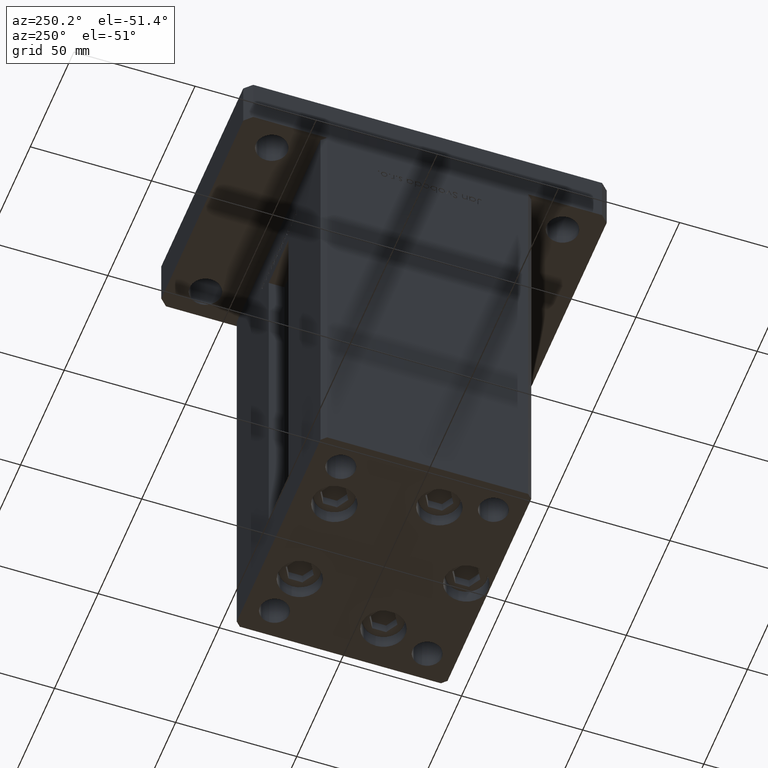
[diagram: clean part render]
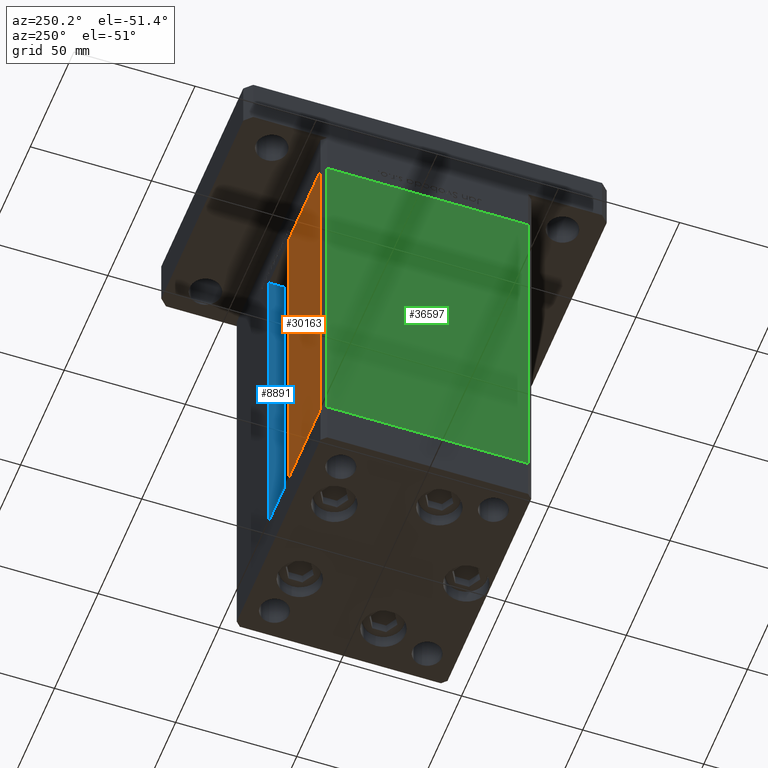
[diagram: same view with three faces highlighted in distinct colors, each labeled with its STEP entity id]
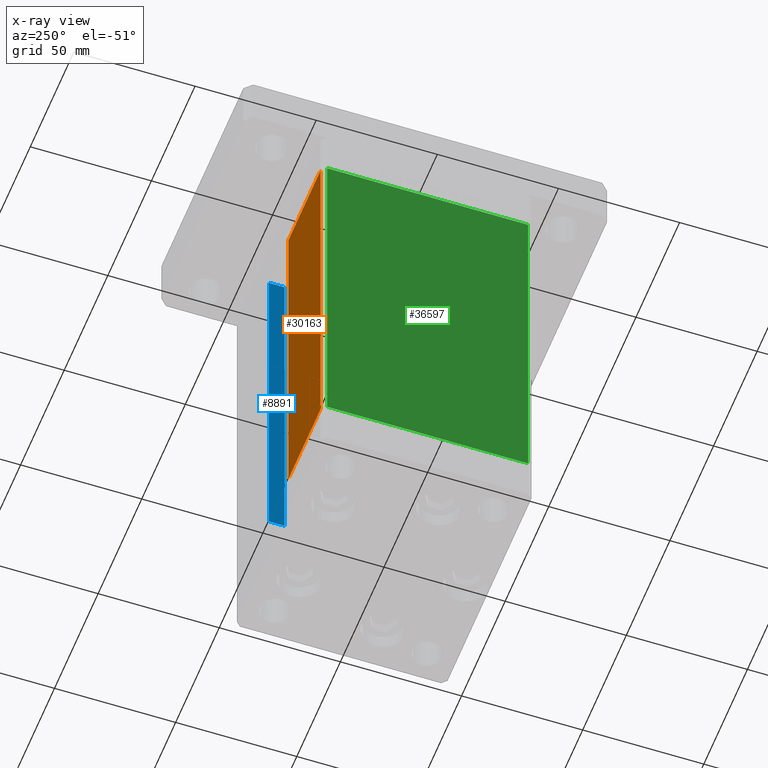
[diagram: x-ray of the same camera — body ghosted, the three highlighted faces saturated]
A machine part, auxiliary view with three faces highlighted in distinct colors.
The next image is the same camera in x-ray (body ghosted, the three faces saturated) — at least one of them is partly hidden behind the body in this view.
Their STEP definitions:

[orange] entity #30163 — the highlighted planar face has unit normal (0, -1, 0).
#921 = LINE ( 'NONE', #50553, #19025 ) ;
#3243 = LINE ( 'NONE', #21655, #41199 ) ;
#7021 = FACE_OUTER_BOUND ( 'NONE', #26071, .T. ) ;
#12082 = CARTESIAN_POINT ( 'NONE',  ( -11.24999999999999822, 43.50000000000000000, 148.5000000000000000 ) ) ;
#13213 = DIRECTION ( 'NONE',  ( -0.000000000000000000, -0.000000000000000000, -1.000000000000000000 ) ) ;
#13479 = DIRECTION ( 'NONE',  ( -1.000000000000000000, 0.000000000000000000, 0.000000000000000000 ) ) ;
#14497 = VERTEX_POINT ( 'NONE', #27267 ) ;
#16346 = EDGE_CURVE ( 'NONE', #36503, #23086, #3243, .T. ) ;
#16882 = CARTESIAN_POINT ( 'NONE',  ( -11.24999999999999822, 43.50000000000000000, 0.000000000000000000 ) ) ;
#17941 = LINE ( 'NONE', #34561, #52145 ) ;
#18936 = AXIS2_PLACEMENT_3D ( 'NONE', #44094, #44923, #32095 ) ;
#19025 = VECTOR ( 'NONE', #13213, 1000.000000000000000 ) ;
#19190 = VERTEX_POINT ( 'NONE', #40812 ) ;
#20484 = ORIENTED_EDGE ( 'NONE', *, *, #50296, .F. ) ;
#21001 = ORIENTED_EDGE ( 'NONE', *, *, #48471, .T. ) ;
#21655 = CARTESIAN_POINT ( 'NONE',  ( -11.24999999999999822, 43.50000000000000000, 0.000000000000000000 ) ) ;
#23086 = VERTEX_POINT ( 'NONE', #25437 ) ;
#25437 = CARTESIAN_POINT ( 'NONE',  ( -48.00000000000000711, 43.50000000000000000, 0.000000000000000000 ) ) ;
#26071 = EDGE_LOOP ( 'NONE', ( #21001, #27848, #45856, #20484 ) ) ;
#27267 = CARTESIAN_POINT ( 'NONE',  ( -11.24999999999999822, 43.50000000000000000, 148.5000000000000000 ) ) ;
#27848 = ORIENTED_EDGE ( 'NONE', *, *, #51718, .F. ) ;
#30163 = ADVANCED_FACE ( 'NONE', ( #7021 ), #44643, .F. ) ;
#32095 = DIRECTION ( 'NONE',  ( 0.000000000000000000, -0.000000000000000000, -1.000000000000000000 ) ) ;
#33045 = LINE ( 'NONE', #12082, #34617 ) ;
#34561 = CARTESIAN_POINT ( 'NONE',  ( -11.24999999999999822, 43.50000000000000000, 0.000000000000000000 ) ) ;
#34617 = VECTOR ( 'NONE', #45585, 1000.000000000000000 ) ;
#34827 = DIRECTION ( 'NONE',  ( -0.000000000000000000, -0.000000000000000000, 1.000000000000000000 ) ) ;
#36503 = VERTEX_POINT ( 'NONE', #16882 ) ;
#40812 = CARTESIAN_POINT ( 'NONE',  ( -48.00000000000000711, 43.50000000000000000, 148.5000000000000000 ) ) ;
#41199 = VECTOR ( 'NONE', #13479, 1000.000000000000000 ) ;
#44094 = CARTESIAN_POINT ( 'NONE',  ( -11.24999999999999822, 43.50000000000000000, 148.5000000000000000 ) ) ;
#44643 = PLANE ( 'NONE',  #18936 ) ;
#44923 = DIRECTION ( 'NONE',  ( 0.000000000000000000, -1.000000000000000000, 0.000000000000000000 ) ) ;
#45585 = DIRECTION ( 'NONE',  ( 1.000000000000000000, 0.000000000000000000, 0.000000000000000000 ) ) ;
#45856 = ORIENTED_EDGE ( 'NONE', *, *, #16346, .T. ) ;
#48471 = EDGE_CURVE ( 'NONE', #19190, #14497, #33045, .T. ) ;
#50296 = EDGE_CURVE ( 'NONE', #19190, #23086, #921, .T. ) ;
#50553 = CARTESIAN_POINT ( 'NONE',  ( -48.00000000000000711, 43.50000000000000000, 148.5000000000000000 ) ) ;
#51718 = EDGE_CURVE ( 'NONE', #36503, #14497, #17941, .T. ) ;
#52145 = VECTOR ( 'NONE', #34827, 1000.000000000000000 ) ;

[blue] entity #8891 — the highlighted planar face has unit normal (1, 0, 0).
#2822 = CARTESIAN_POINT ( 'NONE',  ( 11.24999999999999822, 43.50000000000000000, 0.000000000000000000 ) ) ;
#3473 = DIRECTION ( 'NONE',  ( -0.000000000000000000, -0.000000000000000000, 1.000000000000000000 ) ) ;
#6315 = CARTESIAN_POINT ( 'NONE',  ( 11.24999999999999822, 36.99999999999999289, 0.000000000000000000 ) ) ;
#8891 = ADVANCED_FACE ( 'NONE', ( #36285 ), #11229, .F. ) ;
#10064 = LINE ( 'NONE', #51758, #15187 ) ;
#11229 = PLANE ( 'NONE',  #16568 ) ;
#12429 = ORIENTED_EDGE ( 'NONE', *, *, #40110, .T. ) ;
#13025 = CARTESIAN_POINT ( 'NONE',  ( 11.24999999999999822, 36.99999999999999289, 0.000000000000000000 ) ) ;
#13556 = VERTEX_POINT ( 'NONE', #34673 ) ;
#13687 = EDGE_CURVE ( 'NONE', #17151, #38662, #38629, .T. ) ;
#14419 = DIRECTION ( 'NONE',  ( -0.000000000000000000, -0.000000000000000000, 1.000000000000000000 ) ) ;
#15003 = VECTOR ( 'NONE', #22565, 1000.000000000000000 ) ;
#15187 = VECTOR ( 'NONE', #14419, 1000.000000000000000 ) ;
#16568 = AXIS2_PLACEMENT_3D ( 'NONE', #6315, #22951, #27854 ) ;
#16745 = ORIENTED_EDGE ( 'NONE', *, *, #13687, .F. ) ;
#16940 = ORIENTED_EDGE ( 'NONE', *, *, #50098, .F. ) ;
#17151 = VERTEX_POINT ( 'NONE', #13025 ) ;
#21382 = VECTOR ( 'NONE', #3473, 1000.000000000000000 ) ;
#22258 = CARTESIAN_POINT ( 'NONE',  ( 11.24999999999999822, 0.000000000000000000, 148.5000000000000000 ) ) ;
#22565 = DIRECTION ( 'NONE',  ( 0.000000000000000000, 1.000000000000000000, 0.000000000000000000 ) ) ;
#22673 = EDGE_CURVE ( 'NONE', #38662, #13556, #36708, .T. ) ;
#22951 = DIRECTION ( 'NONE',  ( 1.000000000000000000, -0.000000000000000000, 0.000000000000000000 ) ) ;
#24366 = ORIENTED_EDGE ( 'NONE', *, *, #22673, .F. ) ;
#27085 = VERTEX_POINT ( 'NONE', #33600 ) ;
#27854 = DIRECTION ( 'NONE',  ( 0.000000000000000000, 0.000000000000000000, -1.000000000000000000 ) ) ;
#29626 = DIRECTION ( 'NONE',  ( -0.000000000000000000, -1.000000000000000000, 0.000000000000000000 ) ) ;
#31811 = CARTESIAN_POINT ( 'NONE',  ( 11.24999999999999822, 43.50000000000000000, 0.000000000000000000 ) ) ;
#32553 = EDGE_LOOP ( 'NONE', ( #24366, #16745, #12429, #16940 ) ) ;
#33600 = CARTESIAN_POINT ( 'NONE',  ( 11.24999999999999822, 36.99999999999999289, 148.5000000000000000 ) ) ;
#34673 = CARTESIAN_POINT ( 'NONE',  ( 11.24999999999999112, 43.50000000000000000, 148.5000000000000000 ) ) ;
#36285 = FACE_OUTER_BOUND ( 'NONE', #32553, .T. ) ;
#36708 = LINE ( 'NONE', #31811, #21382 ) ;
#38629 = LINE ( 'NONE', #50921, #15003 ) ;
#38662 = VERTEX_POINT ( 'NONE', #2822 ) ;
#40110 = EDGE_CURVE ( 'NONE', #17151, #27085, #10064, .T. ) ;
#46515 = LINE ( 'NONE', #22258, #47713 ) ;
#47713 = VECTOR ( 'NONE', #29626, 1000.000000000000000 ) ;
#50098 = EDGE_CURVE ( 'NONE', #13556, #27085, #46515, .T. ) ;
#50921 = CARTESIAN_POINT ( 'NONE',  ( 11.24999999999999822, 36.99999999999999289, 0.000000000000000000 ) ) ;
#51758 = CARTESIAN_POINT ( 'NONE',  ( 11.24999999999999822, 36.99999999999999289, 0.000000000000000000 ) ) ;

[green] entity #36597 — the highlighted planar face has unit normal (1, 0, 0).
#1009 = CARTESIAN_POINT ( 'NONE',  ( -50.00000000000001421, 41.49999999999999289, 0.000000000000000000 ) ) ;
#3461 = DIRECTION ( 'NONE',  ( 3.344045254895050973E-16, -1.000000000000000000, 0.000000000000000000 ) ) ;
#4235 = EDGE_CURVE ( 'NONE', #51494, #27955, #5257, .T. ) ;
#5078 = DIRECTION ( 'NONE',  ( -0.000000000000000000, -0.000000000000000000, -1.000000000000000000 ) ) ;
#5257 = LINE ( 'NONE', #47518, #32218 ) ;
#7552 = CARTESIAN_POINT ( 'NONE',  ( -50.00000000000001421, 41.49999999999999289, 148.5000000000000000 ) ) ;
#18065 = DIRECTION ( 'NONE',  ( -0.000000000000000000, -0.000000000000000000, -1.000000000000000000 ) ) ;
#20223 = LINE ( 'NONE', #1009, #39625 ) ;
#20631 = CARTESIAN_POINT ( 'NONE',  ( -50.00000000000001421, 41.49999999999999289, 0.000000000000000000 ) ) ;
#22468 = EDGE_CURVE ( 'NONE', #27955, #48781, #20223, .T. ) ;
#23505 = CARTESIAN_POINT ( 'NONE',  ( -49.99999999999998579, -41.49999999999999289, 148.5000000000000000 ) ) ;
#23822 = VERTEX_POINT ( 'NONE', #23505 ) ;
#23917 = AXIS2_PLACEMENT_3D ( 'NONE', #42666, #29595, #33678 ) ;
#25801 = LINE ( 'NONE', #42421, #44859 ) ;
#27955 = VERTEX_POINT ( 'NONE', #20631 ) ;
#29595 = DIRECTION ( 'NONE',  ( 1.000000000000000000, 3.344045254895050480E-16, -0.000000000000000000 ) ) ;
#30190 = VECTOR ( 'NONE', #3461, 1000.000000000000000 ) ;
#32218 = VECTOR ( 'NONE', #18065, 1000.000000000000000 ) ;
#33678 = DIRECTION ( 'NONE',  ( -3.344045254895050480E-16, 1.000000000000000000, 0.000000000000000000 ) ) ;
#33708 = ORIENTED_EDGE ( 'NONE', *, *, #40422, .F. ) ;
#34568 = CARTESIAN_POINT ( 'NONE',  ( -49.99999999999998579, -41.49999999999999289, 0.000000000000000000 ) ) ;
#35265 = ORIENTED_EDGE ( 'NONE', *, *, #46404, .F. ) ;
#36597 = ADVANCED_FACE ( 'NONE', ( #41874 ), #37769, .F. ) ;
#37769 = PLANE ( 'NONE',  #23917 ) ;
#39625 = VECTOR ( 'NONE', #40950, 1000.000000000000000 ) ;
#40422 = EDGE_CURVE ( 'NONE', #23822, #48781, #25801, .T. ) ;
#40950 = DIRECTION ( 'NONE',  ( 3.344045254895050973E-16, -1.000000000000000000, 0.000000000000000000 ) ) ;
#41154 = CARTESIAN_POINT ( 'NONE',  ( -50.00000000000001421, 41.49999999999999289, 148.5000000000000000 ) ) ;
#41305 = EDGE_LOOP ( 'NONE', ( #49310, #33708, #35265, #50551 ) ) ;
#41856 = LINE ( 'NONE', #7552, #30190 ) ;
#41874 = FACE_OUTER_BOUND ( 'NONE', #41305, .T. ) ;
#42421 = CARTESIAN_POINT ( 'NONE',  ( -49.99999999999998579, -41.49999999999999289, 148.5000000000000000 ) ) ;
#42666 = CARTESIAN_POINT ( 'NONE',  ( -50.00000000000001421, 41.49999999999999289, 148.5000000000000000 ) ) ;
#44859 = VECTOR ( 'NONE', #5078, 1000.000000000000000 ) ;
#46404 = EDGE_CURVE ( 'NONE', #51494, #23822, #41856, .T. ) ;
#47518 = CARTESIAN_POINT ( 'NONE',  ( -50.00000000000001421, 41.49999999999999289, 148.5000000000000000 ) ) ;
#48781 = VERTEX_POINT ( 'NONE', #34568 ) ;
#49310 = ORIENTED_EDGE ( 'NONE', *, *, #22468, .T. ) ;
#50551 = ORIENTED_EDGE ( 'NONE', *, *, #4235, .T. ) ;
#51494 = VERTEX_POINT ( 'NONE', #41154 ) ;